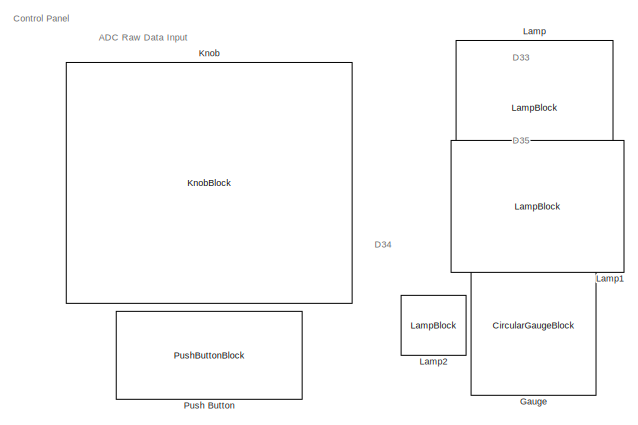
[diagram: root canvas - part 1/4, top right region]
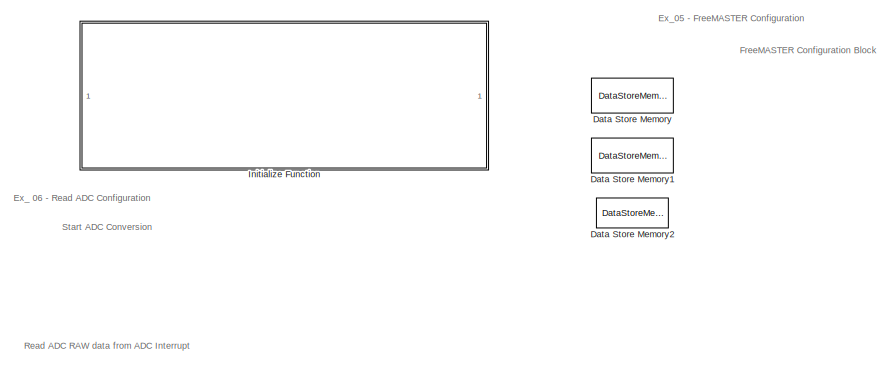
[diagram: root canvas - part 2/4, top left region]
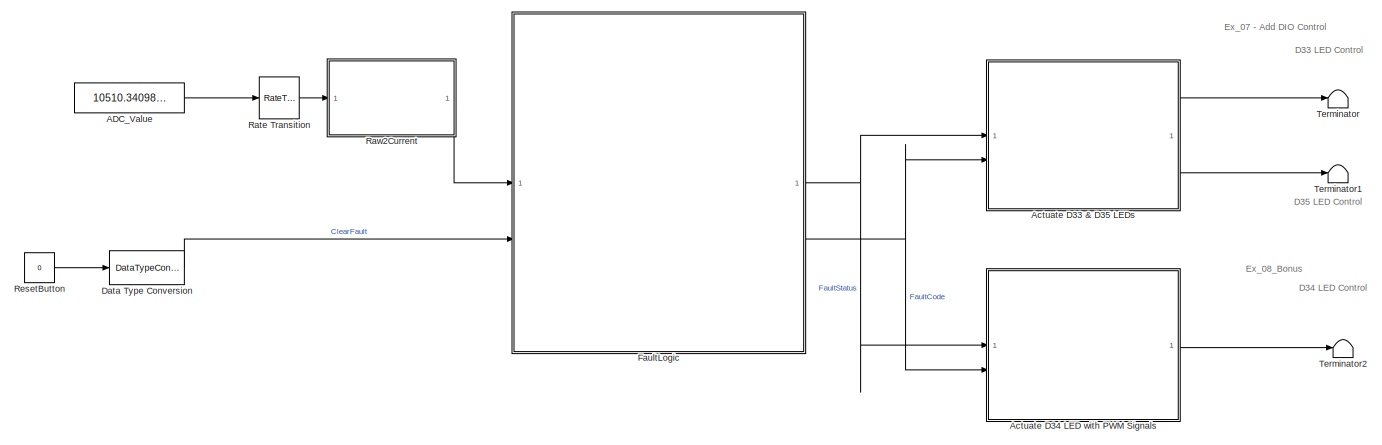
[diagram: root canvas - part 3/4, full width, bottom band]
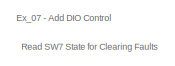
[diagram: root canvas - part 4/4, bottom left region]
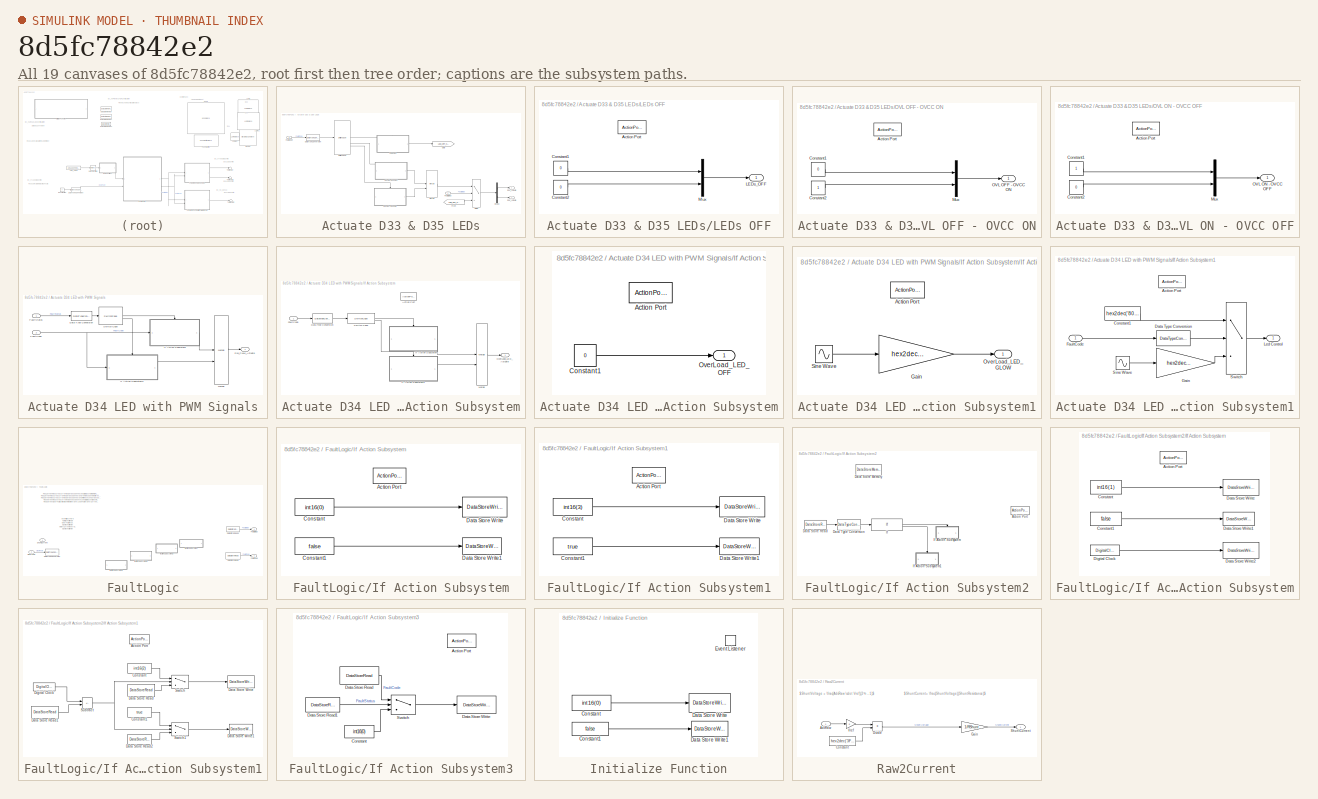
[diagram: thumbnail index - all 19 canvases of the model, root first then tree order]
MODEL slx_8d5fc78842e2
KIND model
CONFIG AbsTol = auto
CONFIG EnableMultiTasking = off
CONFIG FixedStep = auto
CONFIG InitFcn = % NXP_MBDT_S32K3 callback: DO NOT REMOVE\n% mbd_s32k3.common.nxp.model_callbacks.initFcn();
CONFIG MaxStep = auto
CONFIG MinStep = auto
CONFIG PostLoadFcn = % NXP_MBDT_S32K3 callback: DO NOT REMOVE\n% mbd_s32k3.common.nxp.model_callbacks.postLoadFcn();
CONFIG PreLoadFcn = % NXP_MBDT_S32K3 callback: DO NOT REMOVE\n% mbd_s32k3.common.nxp.model_callbacks.preLoadFcn();
CONFIG RelTol = 1e-3
CONFIG SampleTimeConstraint = Unconstrained
CONFIG SolverName = FixedStepDiscrete
CONFIG StartTime = 0.0
CONFIG StopTime = inf
BLOCK [Constant] ADC_Value
  Value = 10510.34098260568
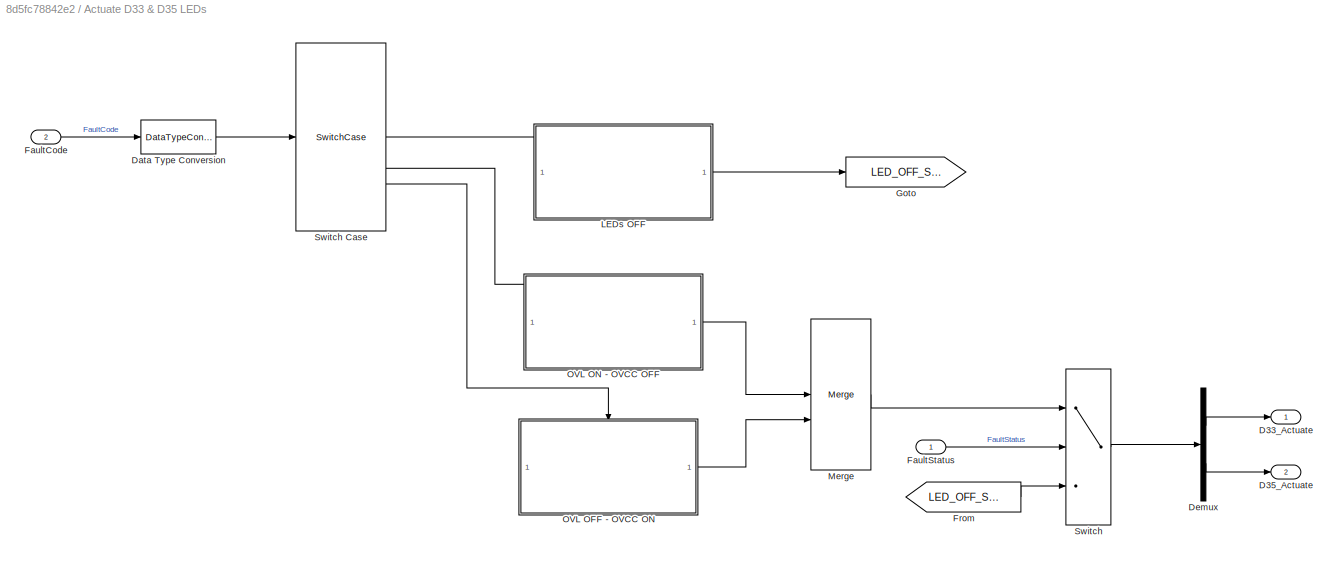
BLOCK [SubSystem] Actuate D33 & D35 LEDs
BLOCK [Outport] Actuate D33 & D35 LEDs/D33_Actuate
BLOCK [Outport] Actuate D33 & D35 LEDs/D35_Actuate
  Port = 2
BLOCK [DataTypeConversion] Actuate D33 & D35 LEDs/Data Type Conversion
  OutDataTypeStr = uint8
  RndMeth = Floor
  SaturateOnIntegerOverflow = off
BLOCK [Demux] Actuate D33 & D35 LEDs/Demux
  Outputs = 2
BLOCK [Inport] Actuate D33 & D35 LEDs/FaultCode
  Port = 2
BLOCK [Inport] Actuate D33 & D35 LEDs/FaultStatus
BLOCK [From] Actuate D33 & D35 LEDs/From
  GotoTag = LED_OFF_Signal
BLOCK [Goto] Actuate D33 & D35 LEDs/Goto
  GotoTag = LED_OFF_Signal
BLOCK [SubSystem] Actuate D33 & D35 LEDs/LEDs OFF
  TreatAsAtomicUnit = on
BLOCK [ActionPort] Actuate D33 & D35 LEDs/LEDs OFF/Action Port
  ActionPortLabel = case [ 0 ]:
BLOCK [Constant] Actuate D33 & D35 LEDs/LEDs OFF/Constant1
  OutDataTypeStr = uint8
  Value = 0
BLOCK [Constant] Actuate D33 & D35 LEDs/LEDs OFF/Constant2
  OutDataTypeStr = uint8
  Value = 0
BLOCK [Outport] Actuate D33 & D35 LEDs/LEDs OFF/LEDs_OFF
  InitialOutput = [0 0]
BLOCK [Mux] Actuate D33 & D35 LEDs/LEDs OFF/Mux
  DisplayOption = bar
  Inputs = 2
BLOCK [Merge] Actuate D33 & D35 LEDs/Merge
BLOCK [SubSystem] Actuate D33 & D35 LEDs/OVL OFF - OVCC ON
  TreatAsAtomicUnit = on
BLOCK [ActionPort] Actuate D33 & D35 LEDs/OVL OFF - OVCC ON/Action Port
  ActionPortLabel = case [ 3 ]:
BLOCK [Constant] Actuate D33 & D35 LEDs/OVL OFF - OVCC ON/Constant1
  OutDataTypeStr = uint8
  Value = 0
BLOCK [Constant] Actuate D33 & D35 LEDs/OVL OFF - OVCC ON/Constant2
  OutDataTypeStr = uint8
BLOCK [Mux] Actuate D33 & D35 LEDs/OVL OFF - OVCC ON/Mux
  DisplayOption = bar
  Inputs = 2
BLOCK [Outport] Actuate D33 & D35 LEDs/OVL OFF - OVCC ON/OVL OFF - OVCC ON
  InitialOutput = [0 1]
BLOCK [SubSystem] Actuate D33 & D35 LEDs/OVL ON - OVCC OFF
  TreatAsAtomicUnit = on
BLOCK [ActionPort] Actuate D33 & D35 LEDs/OVL ON - OVCC OFF/Action Port
  ActionPortLabel = case [ 2 ]:
BLOCK [Constant] Actuate D33 & D35 LEDs/OVL ON - OVCC OFF/Constant1
  OutDataTypeStr = uint8
BLOCK [Constant] Actuate D33 & D35 LEDs/OVL ON - OVCC OFF/Constant2
  OutDataTypeStr = uint8
  Value = 0
BLOCK [Mux] Actuate D33 & D35 LEDs/OVL ON - OVCC OFF/Mux
  DisplayOption = bar
  Inputs = 2
BLOCK [Outport] Actuate D33 & D35 LEDs/OVL ON - OVCC OFF/OVL ON - OVCC OFF
  InitialOutput = [1 0]
BLOCK [Switch] Actuate D33 & D35 LEDs/Switch
  Criteria = u2 > Threshold
  InputSameDT = off
  SaturateOnIntegerOverflow = off
BLOCK [SwitchCase] Actuate D33 & D35 LEDs/Switch Case
  CaseConditions = {0,2,3}
  ShowDefaultCase = off
BLOCK [SubSystem] Actuate D34 LED with PWM Signals
BLOCK [Outport] Actuate D34 LED with PWM Signals/D34_PWM_Actuate
BLOCK [DataTypeConversion] Actuate D34 LED with PWM Signals/Data Type Conversion
  OutDataTypeStr = uint8
  RndMeth = Floor
  SaturateOnIntegerOverflow = off
BLOCK [Inport] Actuate D34 LED with PWM Signals/FaultCode
  Port = 2
BLOCK [Inport] Actuate D34 LED with PWM Signals/FaultStatus
BLOCK [SubSystem] Actuate D34 LED with PWM Signals/If Action Subsystem
  TreatAsAtomicUnit = on
BLOCK [ActionPort] Actuate D34 LED with PWM Signals/If Action Subsystem/Action Port
  ActionPortLabel = case [ 0 ]:
BLOCK [DataTypeConversion] Actuate D34 LED with PWM Signals/If Action Subsystem/Data Type Conversion
  OutDataTypeStr = uint8
  RndMeth = Floor
  SaturateOnIntegerOverflow = off
BLOCK [Inport] Actuate D34 LED with PWM Signals/If Action Subsystem/FaultCode
BLOCK [SubSystem] Actuate D34 LED with PWM Signals/If Action Subsystem/If Action Subsystem
  TreatAsAtomicUnit = on
BLOCK [ActionPort] Actuate D34 LED with PWM Signals/If Action Subsystem/If Action Subsystem/Action Port
  ActionPortLabel = case [ 0 ]:
BLOCK [Constant] Actuate D34 LED with PWM Signals/If Action Subsystem/If Action Subsystem/Constant1
  OutDataTypeStr = uint16
  Value = 0
BLOCK [Outport] Actuate D34 LED with PWM Signals/If Action Subsystem/If Action Subsystem/OverLoad_LED_OFF
BLOCK [SubSystem] Actuate D34 LED with PWM Signals/If Action Subsystem/If Action Subsystem1
  TreatAsAtomicUnit = on
BLOCK [ActionPort] Actuate D34 LED with PWM Signals/If Action Subsystem/If Action Subsystem1/Action Port
  ActionPortLabel = case [ 1 ]:
BLOCK [Gain] Actuate D34 LED with PWM Signals/If Action Subsystem/If Action Subsystem1/Gain
  Gain = hex2dec('8000')
  OutDataTypeStr = uint16
BLOCK [Outport] Actuate D34 LED with PWM Signals/If Action Subsystem/If Action Subsystem1/OverLoad_LED_GLOW
BLOCK [Sin] Actuate D34 LED with PWM Signals/If Action Subsystem/If Action Subsystem1/Sine Wave
  Amplitude = 0.5
  Bias = 0.5
  Frequency = pi
BLOCK [Merge] Actuate D34 LED with PWM Signals/If Action Subsystem/Merge
BLOCK [Outport] Actuate D34 LED with PWM Signals/If Action Subsystem/OverLoad_LED_Actuate
BLOCK [SwitchCase] Actuate D34 LED with PWM Signals/If Action Subsystem/Switch Case
  CaseConditions = {0,1}
  ShowDefaultCase = off
BLOCK [SubSystem] Actuate D34 LED with PWM Signals/If Action Subsystem1
  TreatAsAtomicUnit = on
BLOCK [ActionPort] Actuate D34 LED with PWM Signals/If Action Subsystem1/Action Port
  ActionPortLabel = case [ 1 ]:
BLOCK [Constant] Actuate D34 LED with PWM Signals/If Action Subsystem1/Constant1
  OutDataTypeStr = uint16
  Value = hex2dec('8000')
BLOCK [DataTypeConversion] Actuate D34 LED with PWM Signals/If Action Subsystem1/Data Type Conversion
  OutDataTypeStr = uint8
  RndMeth = Floor
  SaturateOnIntegerOverflow = off
BLOCK [Inport] Actuate D34 LED with PWM Signals/If Action Subsystem1/FaultCode
BLOCK [Gain] Actuate D34 LED with PWM Signals/If Action Subsystem1/Gain
  Gain = hex2dec('8000')
  OutDataTypeStr = uint16
BLOCK [Outport] Actuate D34 LED with PWM Signals/If Action Subsystem1/Led Control
BLOCK [Sin] Actuate D34 LED with PWM Signals/If Action Subsystem1/Sine Wave
  Amplitude = 0.5
  Bias = 0.5
  Frequency = 4*pi
BLOCK [Switch] Actuate D34 LED with PWM Signals/If Action Subsystem1/Switch
  Criteria = u2 > Threshold
  InputSameDT = off
  SaturateOnIntegerOverflow = off
  Threshold = 2
BLOCK [Merge] Actuate D34 LED with PWM Signals/Merge
BLOCK [SwitchCase] Actuate D34 LED with PWM Signals/Switch Case
  CaseConditions = {0,1}
  ShowDefaultCase = off
BLOCK [DataStoreMemory] Data Store Memory
  DataStoreName = ResultBuffer
  OutDataTypeStr = uint16
  ReadBeforeWriteMsg = warning
  ShowAdditionalParam = off
  WriteAfterReadMsg = warning
  WriteAfterWriteMsg = warning
BLOCK [DataStoreMemory] Data Store Memory1
  DataStoreName = FaultCode
  InitialValue = int16(0)
  OutDataTypeStr = int16
  OutMax = 3
  OutMin = 0
  ShowAdditionalParam = off
  SignalType = real
  WriteAfterWriteMsg = warning
BLOCK [DataStoreMemory] Data Store Memory2
  DataStoreName = FaultStatus
  InitialValue = false
  OutDataTypeStr = boolean
  ShowAdditionalParam = off
  WriteAfterWriteMsg = warning
BLOCK [DataTypeConversion] Data Type Conversion
  OutDataTypeStr = boolean
  RndMeth = Floor
  SaturateOnIntegerOverflow = off
BLOCK [SubSystem] FaultLogic
BLOCK [Inport] FaultLogic/ClearFault
  OutDataTypeStr = boolean
  Port = 2
  PortDimensions = 1
  SampleTime = 0.001
  VarSizeSig = No
BLOCK [DataStoreRead] FaultLogic/Data Store Read
  DataStoreName = FaultCode
  IndexOptions = Index vector (dialog)
  Indices = 1
  OutputSizes = 1
  Priority = 2
BLOCK [DataStoreRead] FaultLogic/Data Store Read1
  DataStoreName = FaultStatus
  IndexOptions = Index vector (dialog)
  Indices = 1
  OutputSizes = 1
  Priority = 2
BLOCK [DataTypeConversion] FaultLogic/Data Type Conversion
  OutDataTypeStr = single
  RndMeth = Floor
  SaturateOnIntegerOverflow = off
BLOCK [Outport] FaultLogic/FaultCode
  OutDataTypeStr = int16
  Port = 2
BLOCK [Outport] FaultLogic/FaultStatus
  OutDataTypeStr = boolean
BLOCK [SubSystem] FaultLogic/If Action Subsystem
  TreatAsAtomicUnit = on
BLOCK [ActionPort] FaultLogic/If Action Subsystem/Action Port
  ActionPortLabel = if(u2 == 1)
BLOCK [Constant] FaultLogic/If Action Subsystem/Constant
  OutDataTypeStr = int16
  Value = int16(0)
BLOCK [Constant] FaultLogic/If Action Subsystem/Constant1
  OutDataTypeStr = boolean
  Value = false
BLOCK [DataStoreWrite] FaultLogic/If Action Subsystem/Data Store Write
  DataStoreName = FaultCode
  IndexOptions = Index vector (dialog)
  Indices = 1
  OutputSizes = 1
BLOCK [DataStoreWrite] FaultLogic/If Action Subsystem/Data Store Write1
  DataStoreName = FaultStatus
  IndexOptions = Index vector (dialog)
  Indices = 1
  OutputSizes = 1
BLOCK [SubSystem] FaultLogic/If Action Subsystem1
  TreatAsAtomicUnit = on
BLOCK [ActionPort] FaultLogic/If Action Subsystem1/Action Port
  ActionPortLabel = elseif(u1 > single(7.5))
BLOCK [Constant] FaultLogic/If Action Subsystem1/Constant
  OutDataTypeStr = int16
  Value = int16(3)
BLOCK [Constant] FaultLogic/If Action Subsystem1/Constant1
  OutDataTypeStr = boolean
  Value = true
BLOCK [DataStoreWrite] FaultLogic/If Action Subsystem1/Data Store Write
  DataStoreName = FaultCode
  IndexOptions = Index vector (dialog)
  Indices = 1
  OutputSizes = 1
BLOCK [DataStoreWrite] FaultLogic/If Action Subsystem1/Data Store Write1
  DataStoreName = FaultStatus
  IndexOptions = Index vector (dialog)
  Indices = 1
  OutputSizes = 1
BLOCK [SubSystem] FaultLogic/If Action Subsystem2
  TreatAsAtomicUnit = on
BLOCK [ActionPort] FaultLogic/If Action Subsystem2/Action Port
  ActionPortLabel = elseif( u1 >= single(5))
BLOCK [DataStoreMemory] FaultLogic/If Action Subsystem2/Data Store Memory
  DataStoreName = FaultStartTime
  OutDataTypeStr = double
  ShowAdditionalParam = off
  WriteAfterWriteMsg = warning
BLOCK [DataStoreRead] FaultLogic/If Action Subsystem2/Data Store Read
  DataStoreName = FaultCode
  IndexOptions = Index vector (dialog)
  Indices = 1
  OutputSizes = 1
BLOCK [DataTypeConversion] FaultLogic/If Action Subsystem2/Data Type Conversion
  OutDataTypeStr = single
  RndMeth = Floor
  SaturateOnIntegerOverflow = off
BLOCK [If] FaultLogic/If Action Subsystem2/If
  ElseIfExpressions = u1 == single(1)
  IfExpression = u1 == single(0)
  ShowElse = off
BLOCK [SubSystem] FaultLogic/If Action Subsystem2/If Action Subsystem
  TreatAsAtomicUnit = on
BLOCK [ActionPort] FaultLogic/If Action Subsystem2/If Action Subsystem/Action Port
  ActionPortLabel = if(u1 == single(0))
BLOCK [Constant] FaultLogic/If Action Subsystem2/If Action Subsystem/Constant
  OutDataTypeStr = int16
  Value = int16(1)
BLOCK [Constant] FaultLogic/If Action Subsystem2/If Action Subsystem/Constant1
  OutDataTypeStr = boolean
  Value = false
BLOCK [DataStoreWrite] FaultLogic/If Action Subsystem2/If Action Subsystem/Data Store Write
  DataStoreName = FaultCode
  IndexOptions = Index vector (dialog)
  Indices = 1
  OutputSizes = 1
BLOCK [DataStoreWrite] FaultLogic/If Action Subsystem2/If Action Subsystem/Data Store Write1
  DataStoreName = FaultStatus
  IndexOptions = Index vector (dialog)
  Indices = 1
  OutputSizes = 1
BLOCK [DataStoreWrite] FaultLogic/If Action Subsystem2/If Action Subsystem/Data Store Write2
  DataStoreName = FaultStartTime
  IndexOptions = Index vector (dialog)
  Indices = 1
  OutputSizes = 1
BLOCK [DigitalClock] FaultLogic/If Action Subsystem2/If Action Subsystem/Digital Clock
  SampleTime = 0.001
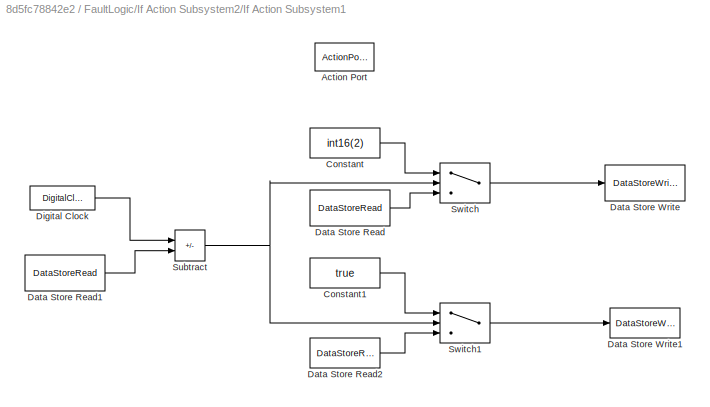
BLOCK [SubSystem] FaultLogic/If Action Subsystem2/If Action Subsystem1
  TreatAsAtomicUnit = on
BLOCK [ActionPort] FaultLogic/If Action Subsystem2/If Action Subsystem1/Action Port
  ActionPortLabel = elseif(u1 == single(1))
BLOCK [Constant] FaultLogic/If Action Subsystem2/If Action Subsystem1/Constant
  OutDataTypeStr = int16
  Value = int16(2)
BLOCK [Constant] FaultLogic/If Action Subsystem2/If Action Subsystem1/Constant1
  OutDataTypeStr = boolean
  Value = true
BLOCK [DataStoreRead] FaultLogic/If Action Subsystem2/If Action Subsystem1/Data Store Read
  DataStoreName = FaultCode
  IndexOptions = Index vector (dialog)
  Indices = 1
  OutputSizes = 1
BLOCK [DataStoreRead] FaultLogic/If Action Subsystem2/If Action Subsystem1/Data Store Read1
  DataStoreName = FaultStartTime
  IndexOptions = Index vector (dialog)
  Indices = 1
  OutputSizes = 1
BLOCK [DataStoreRead] FaultLogic/If Action Subsystem2/If Action Subsystem1/Data Store Read2
  DataStoreName = FaultStatus
  IndexOptions = Index vector (dialog)
  Indices = 1
  OutputSizes = 1
BLOCK [DataStoreWrite] FaultLogic/If Action Subsystem2/If Action Subsystem1/Data Store Write
  DataStoreName = FaultCode
  IndexOptions = Index vector (dialog)
  Indices = 1
  OutputSizes = 1
BLOCK [DataStoreWrite] FaultLogic/If Action Subsystem2/If Action Subsystem1/Data Store Write1
  DataStoreName = FaultStatus
  IndexOptions = Index vector (dialog)
  Indices = 1
  OutputSizes = 1
BLOCK [DigitalClock] FaultLogic/If Action Subsystem2/If Action Subsystem1/Digital Clock
  SampleTime = 0.001
BLOCK [Sum] FaultLogic/If Action Subsystem2/If Action Subsystem1/Subtract
  IconShape = rectangular
  Inputs = +-
BLOCK [Switch] FaultLogic/If Action Subsystem2/If Action Subsystem1/Switch
  InputSameDT = off
  SaturateOnIntegerOverflow = off
  Threshold = 5
BLOCK [Switch] FaultLogic/If Action Subsystem2/If Action Subsystem1/Switch1
  InputSameDT = off
  SaturateOnIntegerOverflow = off
  Threshold = 5
BLOCK [SubSystem] FaultLogic/If Action Subsystem3
  TreatAsAtomicUnit = on
BLOCK [ActionPort] FaultLogic/If Action Subsystem3/Action Port
  ActionPortLabel = else
BLOCK [Constant] FaultLogic/If Action Subsystem3/Constant
  Value = int16(0)
BLOCK [DataStoreRead] FaultLogic/If Action Subsystem3/Data Store Read
  DataStoreName = FaultCode
  IndexOptions = Index vector (dialog)
  Indices = 1
  OutputSizes = 1
  Priority = 2
BLOCK [DataStoreRead] FaultLogic/If Action Subsystem3/Data Store Read1
  DataStoreName = FaultStatus
  IndexOptions = Index vector (dialog)
  Indices = 1
  OutputSizes = 1
  Priority = 2
BLOCK [DataStoreWrite] FaultLogic/If Action Subsystem3/Data Store Write
  DataStoreName = FaultCode
  IndexOptions = Index vector (dialog)
  Indices = 1
  OutputSizes = 1
BLOCK [Switch] FaultLogic/If Action Subsystem3/Switch
  Criteria = u2 ~= 0
  InputSameDT = off
  SaturateOnIntegerOverflow = off
BLOCK [Inport] FaultLogic/ShuntCurrent
  OutDataTypeStr = single
  PortDimensions = 1
  SampleTime = 0.001
  SignalType = real
  Unit = V
  VarSizeSig = No
BLOCK [CircularGaugeBlock] Gauge
  LabelPosition = Hide
  ScaleMax = 50000
BLOCK [SubSystem] Initialize Function
  TreatAsAtomicUnit = on
BLOCK [Constant] Initialize Function/Constant
  OutDataTypeStr = int16
  Value = int16(0)
BLOCK [Constant] Initialize Function/Constant1
  OutDataTypeStr = boolean
  Value = false
BLOCK [DataStoreWrite] Initialize Function/Data Store Write
  DataStoreName = FaultCode
  IndexOptions = Index vector (dialog)
  Indices = 1
  OutputSizes = 1
BLOCK [DataStoreWrite] Initialize Function/Data Store Write1
  DataStoreName = FaultStatus
  IndexOptions = Index vector (dialog)
  Indices = 1
  OutputSizes = 1
BLOCK [EventListener] Initialize Function/Event Listener
  DisableCoverage = on
  EventName = reset
BLOCK [KnobBlock] Knob
  LabelPosition = Hide
  ScaleMax = 20000
BLOCK [LampBlock] Lamp
  Icon = Rectangle
  LabelPosition = Hide
BLOCK [LampBlock] Lamp1
  Icon = Rectangle
  LabelPosition = Hide
BLOCK [LampBlock] Lamp2
  LabelPosition = Hide
BLOCK [PushButtonBlock] Push Button
  ButtonText = Reset Fault
  OffValue = 0.000000
BLOCK [RateTransition] Rate Transition
BLOCK [SubSystem] Raw2Current
BLOCK [Inport] Raw2Current/AdcRaw
BLOCK [Constant] Raw2Current/Constant
  OutDataTypeStr = single
  Value = hex2dec('3FFF')
BLOCK [Product] Raw2Current/Divide
  Inputs = */
  OutDataTypeStr = single
BLOCK [Gain] Raw2Current/Gain
  Gain = 1/RShunt
  OutDataTypeStr = single
BLOCK [Outport] Raw2Current/ShuntCurrent
BLOCK [Gain] Raw2Current/Vref
  Gain = 5
BLOCK [Constant] ResetButton
  Value = 0
BLOCK [Terminator] Terminator
BLOCK [Terminator] Terminator1
BLOCK [Terminator] Terminator2
ANNOTATION (root): D33 LED Control
ANNOTATION (root): D34 LED Control
ANNOTATION (root): D35 LED Control
ANNOTATION (root): FreeMASTER Configuration Block
ANNOTATION (root): Read ADC RAW data from ADC Interrupt
ANNOTATION (root): Read SW7 State for Clearing Faults
ANNOTATION (root): Start ADC Conversion
ANNOTATION (root): ADC Raw Data Input
ANNOTATION (root): D33
ANNOTATION (root): D35
ANNOTATION (root): Control Panel
ANNOTATION (root): D34
ANNOTATION (root): Ex_ 06 - Read ADC Configuration
ANNOTATION (root): Ex_05 - FreeMASTER Configuration
ANNOTATION (root): Ex_07 - Add DIO Control
ANNOTATION (root): Ex_08_Bonus
ANNOTATION FaultLogic: Req.1: When measured current value rises above 5A, FaultStatus shall maintain Low and FaultCode shall be set to 1 (OverLoad). If the current value drops below 5A within 5s, FaultCode shall be set to 0. Req. 2: When measured current value rises above 5A and remains above that threshold for at least 5 seconds , FaultStatus shall be set to High and FaultCode shall be set to 2 ( OverLoadFault ). Req.3...<+473ch>
ANNOTATION FaultLogic: Insert If Block Here Note, If condition is if ClearFault is true. Elseif condition for MotorCurrent over 7.5. Elseif condition for MotorCurrent over 5. Add Else condition.
ANNOTATION Raw2Current: $ShuntCurrent= \frac{ShuntVoltage}{ShuntResistance}$
ANNOTATION Raw2Current: $ShuntVoltage = \frac{AdcRaw \cdot Vref}{2^n - 1}$
LINE ADC_Value:1 -> Rate Transition:1
LINE Actuate D33 & D35 LEDs/Data Type Conversion:1 -> Actuate D33 & D35 LEDs/Switch Case:1
LINE Actuate D33 & D35 LEDs/Demux:1 -> Actuate D33 & D35 LEDs/D33_Actuate:1
LINE Actuate D33 & D35 LEDs/Demux:2 -> Actuate D33 & D35 LEDs/D35_Actuate:1
LINE Actuate D33 & D35 LEDs/FaultCode:1 -> Actuate D33 & D35 LEDs/Data Type Conversion:1
LINE Actuate D33 & D35 LEDs/FaultStatus:1 -> Actuate D33 & D35 LEDs/Switch:2
LINE Actuate D33 & D35 LEDs/From:1 -> Actuate D33 & D35 LEDs/Switch:3
LINE Actuate D33 & D35 LEDs/LEDs OFF/Constant1:1 -> Actuate D33 & D35 LEDs/LEDs OFF/Mux:1
LINE Actuate D33 & D35 LEDs/LEDs OFF/Constant2:1 -> Actuate D33 & D35 LEDs/LEDs OFF/Mux:2
LINE Actuate D33 & D35 LEDs/LEDs OFF/Mux:1 -> Actuate D33 & D35 LEDs/LEDs OFF/LEDs_OFF:1
LINE Actuate D33 & D35 LEDs/LEDs OFF:1 -> Actuate D33 & D35 LEDs/Goto:1
LINE Actuate D33 & D35 LEDs/Merge:1 -> Actuate D33 & D35 LEDs/Switch:1
LINE Actuate D33 & D35 LEDs/OVL OFF - OVCC ON/Constant1:1 -> Actuate D33 & D35 LEDs/OVL OFF - OVCC ON/Mux:1
LINE Actuate D33 & D35 LEDs/OVL OFF - OVCC ON/Constant2:1 -> Actuate D33 & D35 LEDs/OVL OFF - OVCC ON/Mux:2
LINE Actuate D33 & D35 LEDs/OVL OFF - OVCC ON/Mux:1 -> Actuate D33 & D35 LEDs/OVL OFF - OVCC ON/OVL OFF - OVCC ON:1
LINE Actuate D33 & D35 LEDs/OVL OFF - OVCC ON:1 -> Actuate D33 & D35 LEDs/Merge:2
LINE Actuate D33 & D35 LEDs/OVL ON - OVCC OFF/Constant1:1 -> Actuate D33 & D35 LEDs/OVL ON - OVCC OFF/Mux:1
LINE Actuate D33 & D35 LEDs/OVL ON - OVCC OFF/Constant2:1 -> Actuate D33 & D35 LEDs/OVL ON - OVCC OFF/Mux:2
LINE Actuate D33 & D35 LEDs/OVL ON - OVCC OFF/Mux:1 -> Actuate D33 & D35 LEDs/OVL ON - OVCC OFF/OVL ON - OVCC OFF:1
LINE Actuate D33 & D35 LEDs/OVL ON - OVCC OFF:1 -> Actuate D33 & D35 LEDs/Merge:1
LINE Actuate D33 & D35 LEDs/Switch Case:1 -> Actuate D33 & D35 LEDs/LEDs OFF:ifaction
LINE Actuate D33 & D35 LEDs/Switch Case:2 -> Actuate D33 & D35 LEDs/OVL ON - OVCC OFF:ifaction
LINE Actuate D33 & D35 LEDs/Switch Case:3 -> Actuate D33 & D35 LEDs/OVL OFF - OVCC ON:ifaction
LINE Actuate D33 & D35 LEDs/Switch:1 -> Actuate D33 & D35 LEDs/Demux:1
LINE Actuate D33 & D35 LEDs:1 -> Terminator:1
LINE Actuate D33 & D35 LEDs:2 -> Terminator1:1
LINE Actuate D34 LED with PWM Signals/Data Type Conversion:1 -> Actuate D34 LED with PWM Signals/Switch Case:1
NET Actuate D34 LED with PWM Signals/FaultCode:1 -> Actuate D34 LED with PWM Signals/If Action Subsystem1:1, Actuate D34 LED with PWM Signals/If Action Subsystem:1
LINE Actuate D34 LED with PWM Signals/FaultStatus:1 -> Actuate D34 LED with PWM Signals/Data Type Conversion:1
LINE Actuate D34 LED with PWM Signals/If Action Subsystem/Data Type Conversion:1 -> Actuate D34 LED with PWM Signals/If Action Subsystem/Switch Case:1
LINE Actuate D34 LED with PWM Signals/If Action Subsystem/FaultCode:1 -> Actuate D34 LED with PWM Signals/If Action Subsystem/Data Type Conversion:1
LINE Actuate D34 LED with PWM Signals/If Action Subsystem/If Action Subsystem/Constant1:1 -> Actuate D34 LED with PWM Signals/If Action Subsystem/If Action Subsystem/OverLoad_LED_OFF:1
LINE Actuate D34 LED with PWM Signals/If Action Subsystem/If Action Subsystem1/Gain:1 -> Actuate D34 LED with PWM Signals/If Action Subsystem/If Action Subsystem1/OverLoad_LED_GLOW:1
LINE Actuate D34 LED with PWM Signals/If Action Subsystem/If Action Subsystem1/Sine Wave:1 -> Actuate D34 LED with PWM Signals/If Action Subsystem/If Action Subsystem1/Gain:1
LINE Actuate D34 LED with PWM Signals/If Action Subsystem/If Action Subsystem1:1 -> Actuate D34 LED with PWM Signals/If Action Subsystem/Merge:2
LINE Actuate D34 LED with PWM Signals/If Action Subsystem/If Action Subsystem:1 -> Actuate D34 LED with PWM Signals/If Action Subsystem/Merge:1
LINE Actuate D34 LED with PWM Signals/If Action Subsystem/Merge:1 -> Actuate D34 LED with PWM Signals/If Action Subsystem/OverLoad_LED_Actuate:1
LINE Actuate D34 LED with PWM Signals/If Action Subsystem/Switch Case:1 -> Actuate D34 LED with PWM Signals/If Action Subsystem/If Action Subsystem:ifaction
LINE Actuate D34 LED with PWM Signals/If Action Subsystem/Switch Case:2 -> Actuate D34 LED with PWM Signals/If Action Subsystem/If Action Subsystem1:ifaction
LINE Actuate D34 LED with PWM Signals/If Action Subsystem1/Constant1:1 -> Actuate D34 LED with PWM Signals/If Action Subsystem1/Switch:1
LINE Actuate D34 LED with PWM Signals/If Action Subsystem1/Data Type Conversion:1 -> Actuate D34 LED with PWM Signals/If Action Subsystem1/Switch:2
LINE Actuate D34 LED with PWM Signals/If Action Subsystem1/FaultCode:1 -> Actuate D34 LED with PWM Signals/If Action Subsystem1/Data Type Conversion:1
LINE Actuate D34 LED with PWM Signals/If Action Subsystem1/Gain:1 -> Actuate D34 LED with PWM Signals/If Action Subsystem1/Switch:3
LINE Actuate D34 LED with PWM Signals/If Action Subsystem1/Sine Wave:1 -> Actuate D34 LED with PWM Signals/If Action Subsystem1/Gain:1
LINE Actuate D34 LED with PWM Signals/If Action Subsystem1/Switch:1 -> Actuate D34 LED with PWM Signals/If Action Subsystem1/Led Control:1
LINE Actuate D34 LED with PWM Signals/If Action Subsystem1:1 -> Actuate D34 LED with PWM Signals/Merge:2
LINE Actuate D34 LED with PWM Signals/If Action Subsystem:1 -> Actuate D34 LED with PWM Signals/Merge:1
LINE Actuate D34 LED with PWM Signals/Merge:1 -> Actuate D34 LED with PWM Signals/D34_PWM_Actuate:1
LINE Actuate D34 LED with PWM Signals/Switch Case:1 -> Actuate D34 LED with PWM Signals/If Action Subsystem:ifaction
LINE Actuate D34 LED with PWM Signals/Switch Case:2 -> Actuate D34 LED with PWM Signals/If Action Subsystem1:ifaction
LINE Actuate D34 LED with PWM Signals:1 -> Terminator2:1
LINE Data Type Conversion:1 -> FaultLogic:2
LINE FaultLogic/ClearFault:1 -> FaultLogic/Data Type Conversion:1
LINE FaultLogic/Data Store Read1:1 -> FaultLogic/FaultStatus:1
LINE FaultLogic/Data Store Read:1 -> FaultLogic/FaultCode:1
LINE FaultLogic/If Action Subsystem/Constant1:1 -> FaultLogic/If Action Subsystem/Data Store Write1:1
LINE FaultLogic/If Action Subsystem/Constant:1 -> FaultLogic/If Action Subsystem/Data Store Write:1
LINE FaultLogic/If Action Subsystem1/Constant1:1 -> FaultLogic/If Action Subsystem1/Data Store Write1:1
LINE FaultLogic/If Action Subsystem1/Constant:1 -> FaultLogic/If Action Subsystem1/Data Store Write:1
LINE FaultLogic/If Action Subsystem2/Data Store Read:1 -> FaultLogic/If Action Subsystem2/Data Type Conversion:1
LINE FaultLogic/If Action Subsystem2/Data Type Conversion:1 -> FaultLogic/If Action Subsystem2/If:1
LINE FaultLogic/If Action Subsystem2/If Action Subsystem/Constant1:1 -> FaultLogic/If Action Subsystem2/If Action Subsystem/Data Store Write1:1
LINE FaultLogic/If Action Subsystem2/If Action Subsystem/Constant:1 -> FaultLogic/If Action Subsystem2/If Action Subsystem/Data Store Write:1
LINE FaultLogic/If Action Subsystem2/If Action Subsystem/Digital Clock:1 -> FaultLogic/If Action Subsystem2/If Action Subsystem/Data Store Write2:1
LINE FaultLogic/If Action Subsystem2/If Action Subsystem1/Constant1:1 -> FaultLogic/If Action Subsystem2/If Action Subsystem1/Switch1:1
LINE FaultLogic/If Action Subsystem2/If Action Subsystem1/Constant:1 -> FaultLogic/If Action Subsystem2/If Action Subsystem1/Switch:1
LINE FaultLogic/If Action Subsystem2/If Action Subsystem1/Data Store Read1:1 -> FaultLogic/If Action Subsystem2/If Action Subsystem1/Subtract:2
LINE FaultLogic/If Action Subsystem2/If Action Subsystem1/Data Store Read2:1 -> FaultLogic/If Action Subsystem2/If Action Subsystem1/Switch1:3
LINE FaultLogic/If Action Subsystem2/If Action Subsystem1/Data Store Read:1 -> FaultLogic/If Action Subsystem2/If Action Subsystem1/Switch:3
LINE FaultLogic/If Action Subsystem2/If Action Subsystem1/Digital Clock:1 -> FaultLogic/If Action Subsystem2/If Action Subsystem1/Subtract:1
NET FaultLogic/If Action Subsystem2/If Action Subsystem1/Subtract:1 -> FaultLogic/If Action Subsystem2/If Action Subsystem1/Switch1:2, FaultLogic/If Action Subsystem2/If Action Subsystem1/Switch:2
LINE FaultLogic/If Action Subsystem2/If Action Subsystem1/Switch1:1 -> FaultLogic/If Action Subsystem2/If Action Subsystem1/Data Store Write1:1
LINE FaultLogic/If Action Subsystem2/If Action Subsystem1/Switch:1 -> FaultLogic/If Action Subsystem2/If Action Subsystem1/Data Store Write:1
LINE FaultLogic/If Action Subsystem2/If:1 -> FaultLogic/If Action Subsystem2/If Action Subsystem:ifaction
LINE FaultLogic/If Action Subsystem2/If:2 -> FaultLogic/If Action Subsystem2/If Action Subsystem1:ifaction
LINE FaultLogic/If Action Subsystem3/Constant:1 -> FaultLogic/If Action Subsystem3/Switch:3
LINE FaultLogic/If Action Subsystem3/Data Store Read1:1 -> FaultLogic/If Action Subsystem3/Switch:2
LINE FaultLogic/If Action Subsystem3/Data Store Read:1 -> FaultLogic/If Action Subsystem3/Switch:1
LINE FaultLogic/If Action Subsystem3/Switch:1 -> FaultLogic/If Action Subsystem3/Data Store Write:1
NET FaultLogic:1 -> Actuate D33 & D35 LEDs:1, Actuate D34 LED with PWM Signals:1
NET FaultLogic:2 -> Actuate D33 & D35 LEDs:2, Actuate D34 LED with PWM Signals:2
LINE Initialize Function/Constant1:1 -> Initialize Function/Data Store Write1:1
LINE Initialize Function/Constant:1 -> Initialize Function/Data Store Write:1
LINE Rate Transition:1 -> Raw2Current:1
LINE Raw2Current/AdcRaw:1 -> Raw2Current/Vref:1
LINE Raw2Current/Constant:1 -> Raw2Current/Divide:2
LINE Raw2Current/Divide:1 -> Raw2Current/Gain:1
LINE Raw2Current/Gain:1 -> Raw2Current/ShuntCurrent:1
LINE Raw2Current/Vref:1 -> Raw2Current/Divide:1
LINE Raw2Current:1 -> FaultLogic:1
LINE ResetButton:1 -> Data Type Conversion:1
note: NET lines group one-source signal fan-out (src -> all destinations, sorted); 1:1 wires keep LINE
